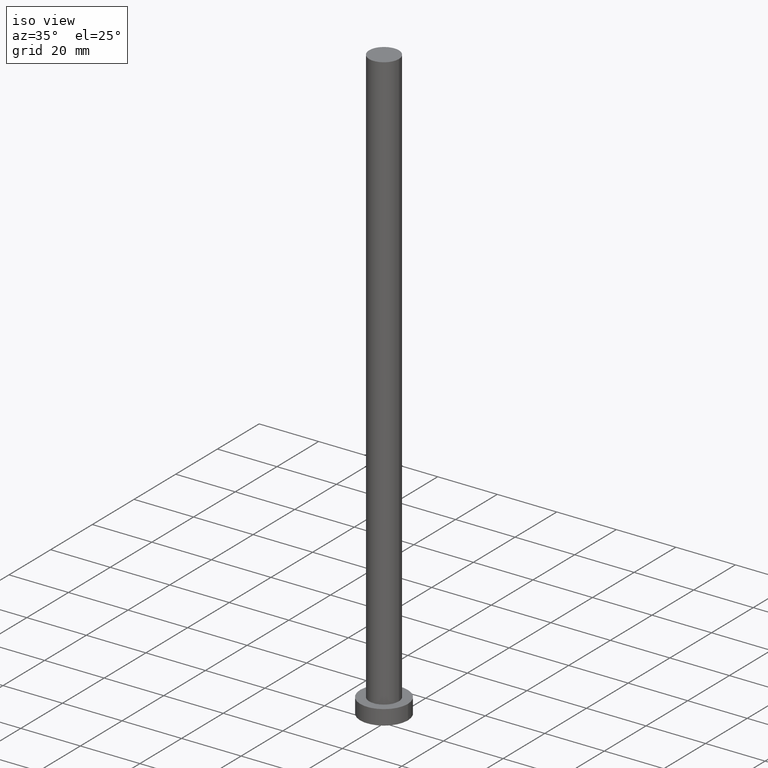
[diagram: clean part render]
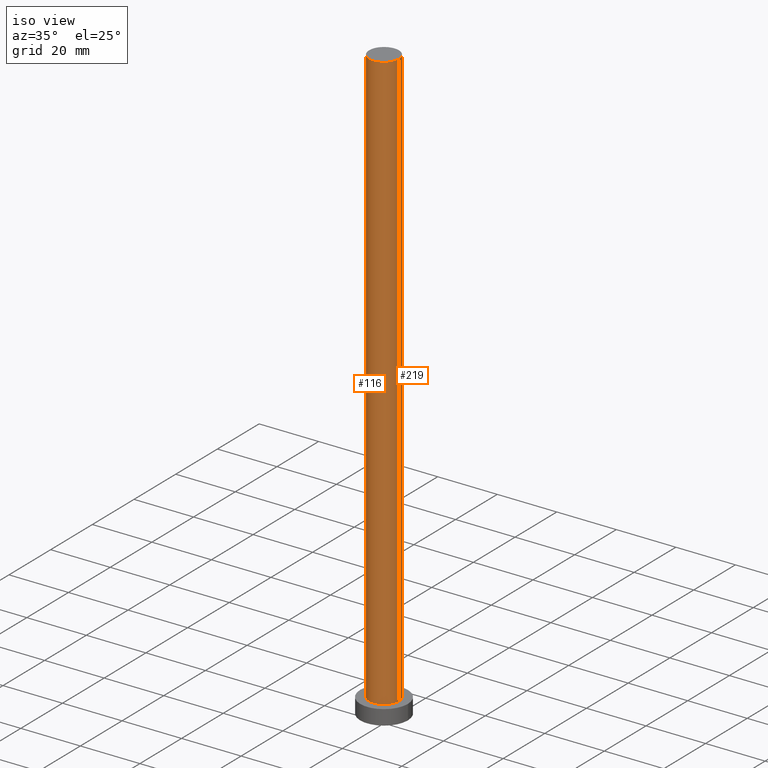
[diagram: same view with one multi-face feature highlighted, each face labeled with its STEP entity id]
A machine part, iso view. The highlighted faces form ONE feature: a constant-radius fillet chain: 2 tangent blend faces with common blend radius 5 mm. The faces share edges in the B-rep.
Their STEP definitions:
[1] entity #219 (Cylinder):
#5 = CARTESIAN_POINT ( 'NONE',  ( -5.000000000000000888, 0.000000000000000000, 200.0000000000000000 ) ) ;
#6 = LINE ( 'NONE', #183, #137 ) ;
#7 = AXIS2_PLACEMENT_3D ( 'NONE', #180, #38, #146 ) ;
#19 = DIRECTION ( 'NONE',  ( 0.000000000000000000, 0.000000000000000000, 1.000000000000000000 ) ) ;
#20 = DIRECTION ( 'NONE',  ( 0.000000000000000000, 0.000000000000000000, 1.000000000000000000 ) ) ;
#37 = EDGE_LOOP ( 'NONE', ( #97, #157, #189, #251 ) ) ;
#38 = DIRECTION ( 'NONE',  ( -0.000000000000000000, -0.000000000000000000, -1.000000000000000000 ) ) ;
#40 = CARTESIAN_POINT ( 'NONE',  ( 0.000000000000000000, 0.000000000000000000, 5.000000000000000000 ) ) ;
#51 = AXIS2_PLACEMENT_3D ( 'NONE', #60, #19, #143 ) ;
#60 = CARTESIAN_POINT ( 'NONE',  ( 0.000000000000000000, 0.000000000000000000, 200.0000000000000000 ) ) ;
#62 = CYLINDRICAL_SURFACE ( 'NONE', #7, 5.000000000000000888 ) ;
#71 = CIRCLE ( 'NONE', #51, 5.000000000000000888 ) ;
#94 = EDGE_CURVE ( 'NONE', #197, #186, #170, .T. ) ;
#97 = ORIENTED_EDGE ( 'NONE', *, *, #130, .F. ) ;
#101 = FACE_OUTER_BOUND ( 'NONE', #37, .T. ) ;
#109 = VECTOR ( 'NONE', #238, 1000.000000000000000 ) ;
#118 = AXIS2_PLACEMENT_3D ( 'NONE', #40, #20, #148 ) ;
#119 = VERTEX_POINT ( 'NONE', #164 ) ;
#130 = EDGE_CURVE ( 'NONE', #195, #119, #71, .T. ) ;
#137 = VECTOR ( 'NONE', #182, 1000.000000000000000 ) ;
#143 = DIRECTION ( 'NONE',  ( 1.000000000000000000, 0.000000000000000000, 0.000000000000000000 ) ) ;
#146 = DIRECTION ( 'NONE',  ( -1.000000000000000000, 0.000000000000000000, 0.000000000000000000 ) ) ;
#148 = DIRECTION ( 'NONE',  ( 1.000000000000000000, 0.000000000000000000, 0.000000000000000000 ) ) ;
#157 = ORIENTED_EDGE ( 'NONE', *, *, #236, .T. ) ;
#159 = EDGE_CURVE ( 'NONE', #119, #186, #220, .T. ) ;
#163 = CARTESIAN_POINT ( 'NONE',  ( -5.000000000000000888, 0.000000000000000000, 5.000000000000000000 ) ) ;
#164 = CARTESIAN_POINT ( 'NONE',  ( -5.000000000000000888, 0.000000000000000000, 200.0000000000000000 ) ) ;
#170 = CIRCLE ( 'NONE', #118, 5.000000000000000888 ) ;
#180 = CARTESIAN_POINT ( 'NONE',  ( 0.000000000000000000, 0.000000000000000000, 200.0000000000000000 ) ) ;
#182 = DIRECTION ( 'NONE',  ( -0.000000000000000000, -0.000000000000000000, -1.000000000000000000 ) ) ;
#183 = CARTESIAN_POINT ( 'NONE',  ( 5.000000000000000888, 6.123233995736767268E-16, 200.0000000000000000 ) ) ;
#186 = VERTEX_POINT ( 'NONE', #163 ) ;
#189 = ORIENTED_EDGE ( 'NONE', *, *, #94, .T. ) ;
#195 = VERTEX_POINT ( 'NONE', #240 ) ;
#197 = VERTEX_POINT ( 'NONE', #241 ) ;
#219 = ADVANCED_FACE ( 'NONE', ( #101 ), #62, .T. ) ;
#220 = LINE ( 'NONE', #5, #109 ) ;
#236 = EDGE_CURVE ( 'NONE', #195, #197, #6, .T. ) ;
#238 = DIRECTION ( 'NONE',  ( -0.000000000000000000, -0.000000000000000000, -1.000000000000000000 ) ) ;
#240 = CARTESIAN_POINT ( 'NONE',  ( 5.000000000000000888, 6.123233995736767268E-16, 200.0000000000000000 ) ) ;
#241 = CARTESIAN_POINT ( 'NONE',  ( 5.000000000000000888, 6.123233995736767268E-16, 5.000000000000000000 ) ) ;
#251 = ORIENTED_EDGE ( 'NONE', *, *, #159, .F. ) ;
[2] entity #116 (Cylinder):
#1 = ORIENTED_EDGE ( 'NONE', *, *, #133, .T. ) ;
#4 = AXIS2_PLACEMENT_3D ( 'NONE', #102, #179, #221 ) ;
#5 = CARTESIAN_POINT ( 'NONE',  ( -5.000000000000000888, 0.000000000000000000, 200.0000000000000000 ) ) ;
#6 = LINE ( 'NONE', #183, #137 ) ;
#17 = ORIENTED_EDGE ( 'NONE', *, *, #236, .F. ) ;
#47 = AXIS2_PLACEMENT_3D ( 'NONE', #198, #123, #160 ) ;
#55 = AXIS2_PLACEMENT_3D ( 'NONE', #58, #103, #125 ) ;
#58 = CARTESIAN_POINT ( 'NONE',  ( 0.000000000000000000, 0.000000000000000000, 200.0000000000000000 ) ) ;
#70 = EDGE_LOOP ( 'NONE', ( #17, #245, #136, #1 ) ) ;
#86 = FACE_OUTER_BOUND ( 'NONE', #70, .T. ) ;
#102 = CARTESIAN_POINT ( 'NONE',  ( 0.000000000000000000, 0.000000000000000000, 5.000000000000000000 ) ) ;
#103 = DIRECTION ( 'NONE',  ( 0.000000000000000000, 0.000000000000000000, 1.000000000000000000 ) ) ;
#109 = VECTOR ( 'NONE', #238, 1000.000000000000000 ) ;
#116 = ADVANCED_FACE ( 'NONE', ( #86 ), #122, .T. ) ;
#119 = VERTEX_POINT ( 'NONE', #164 ) ;
#122 = CYLINDRICAL_SURFACE ( 'NONE', #47, 5.000000000000000888 ) ;
#123 = DIRECTION ( 'NONE',  ( -0.000000000000000000, -0.000000000000000000, -1.000000000000000000 ) ) ;
#125 = DIRECTION ( 'NONE',  ( 1.000000000000000000, 0.000000000000000000, 0.000000000000000000 ) ) ;
#133 = EDGE_CURVE ( 'NONE', #186, #197, #230, .T. ) ;
#136 = ORIENTED_EDGE ( 'NONE', *, *, #159, .T. ) ;
#137 = VECTOR ( 'NONE', #182, 1000.000000000000000 ) ;
#151 = CIRCLE ( 'NONE', #55, 5.000000000000000888 ) ;
#159 = EDGE_CURVE ( 'NONE', #119, #186, #220, .T. ) ;
#160 = DIRECTION ( 'NONE',  ( -1.000000000000000000, 0.000000000000000000, 0.000000000000000000 ) ) ;
#163 = CARTESIAN_POINT ( 'NONE',  ( -5.000000000000000888, 0.000000000000000000, 5.000000000000000000 ) ) ;
#164 = CARTESIAN_POINT ( 'NONE',  ( -5.000000000000000888, 0.000000000000000000, 200.0000000000000000 ) ) ;
#179 = DIRECTION ( 'NONE',  ( 0.000000000000000000, 0.000000000000000000, 1.000000000000000000 ) ) ;
#182 = DIRECTION ( 'NONE',  ( -0.000000000000000000, -0.000000000000000000, -1.000000000000000000 ) ) ;
#183 = CARTESIAN_POINT ( 'NONE',  ( 5.000000000000000888, 6.123233995736767268E-16, 200.0000000000000000 ) ) ;
#186 = VERTEX_POINT ( 'NONE', #163 ) ;
#195 = VERTEX_POINT ( 'NONE', #240 ) ;
#197 = VERTEX_POINT ( 'NONE', #241 ) ;
#198 = CARTESIAN_POINT ( 'NONE',  ( 0.000000000000000000, 0.000000000000000000, 200.0000000000000000 ) ) ;
#216 = EDGE_CURVE ( 'NONE', #119, #195, #151, .T. ) ;
#220 = LINE ( 'NONE', #5, #109 ) ;
#221 = DIRECTION ( 'NONE',  ( 1.000000000000000000, 0.000000000000000000, 0.000000000000000000 ) ) ;
#230 = CIRCLE ( 'NONE', #4, 5.000000000000000888 ) ;
#236 = EDGE_CURVE ( 'NONE', #195, #197, #6, .T. ) ;
#238 = DIRECTION ( 'NONE',  ( -0.000000000000000000, -0.000000000000000000, -1.000000000000000000 ) ) ;
#240 = CARTESIAN_POINT ( 'NONE',  ( 5.000000000000000888, 6.123233995736767268E-16, 200.0000000000000000 ) ) ;
#241 = CARTESIAN_POINT ( 'NONE',  ( 5.000000000000000888, 6.123233995736767268E-16, 5.000000000000000000 ) ) ;
#245 = ORIENTED_EDGE ( 'NONE', *, *, #216, .F. ) ;